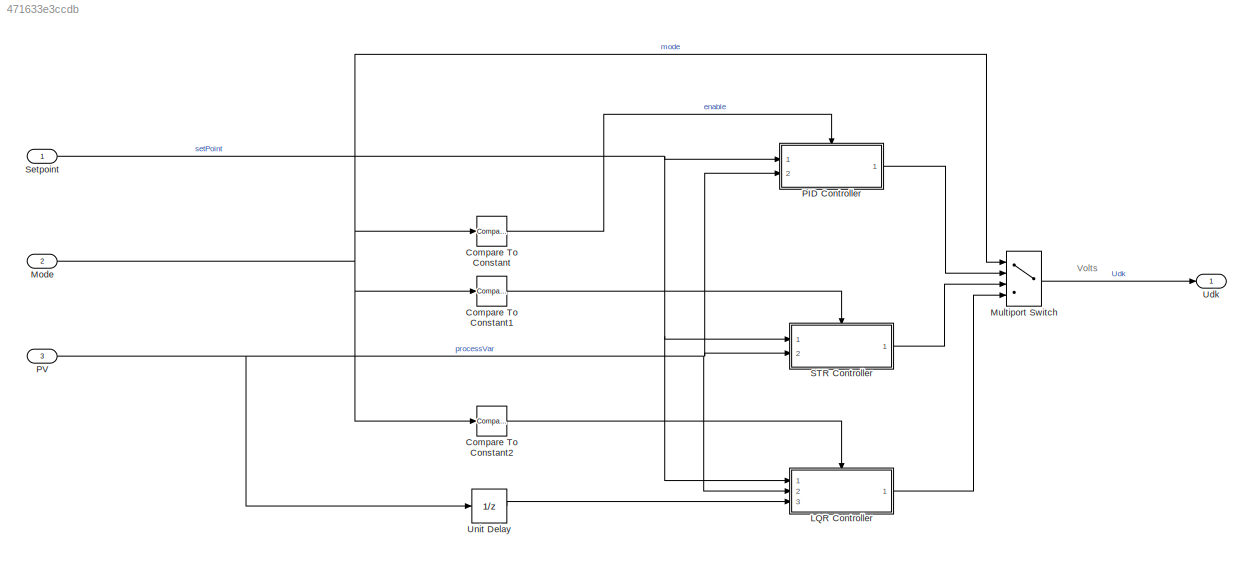
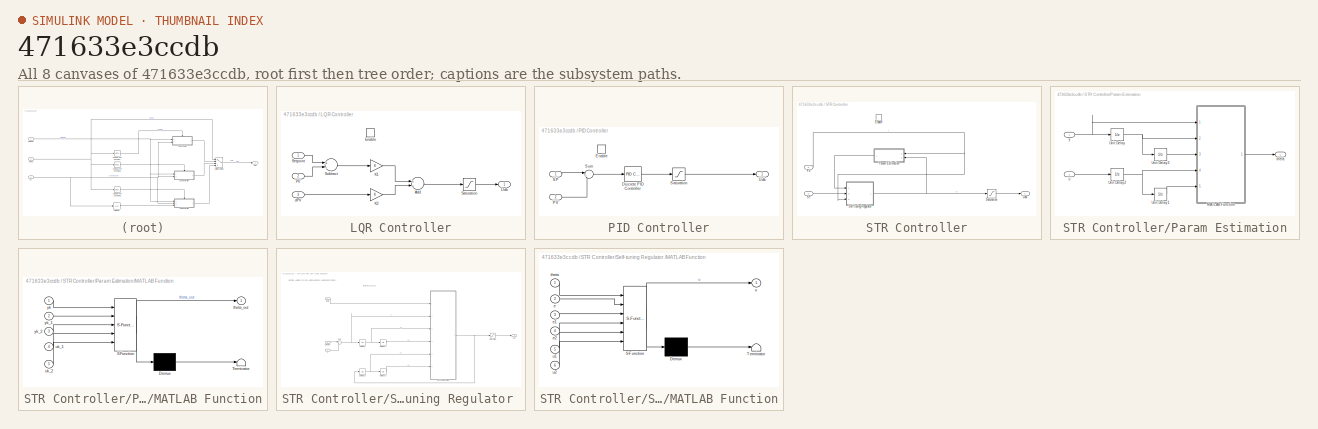
[diagram: thumbnail index - all 8 canvases of the model, root first then tree order]
MODEL slx_471633e3ccdb
KIND model
CONFIG AbsTol = auto
CONFIG EnableMultiTasking = off
CONFIG FixedStep = 0.005
CONFIG MaxStep = auto
CONFIG MinStep = auto
CONFIG RelTol = 1e-3
CONFIG SampleTimeConstraint = Unconstrained
CONFIG Solver = FixedStepDiscrete
CONFIG SolverName = FixedStepDiscrete
CONFIG StartTime = 0.0
CONFIG StopTime = 10.0
BLOCK [Reference] Compare To Constant  REF=simulink/Logic and Bit
Operations/Compare
To Constant
  Ports = [1, 1]
  SourceBlock = simulink/Logic and Bit\nOperations/Compare\nTo Constant
  SourceProductBaseCode = SL
  SourceProductName = Simulink
  SourceType = Compare To Constant
BLOCK [Reference] Compare To Constant1  REF=simulink/Logic and Bit
Operations/Compare
To Constant
  Ports = [1, 1]
  SourceBlock = simulink/Logic and Bit\nOperations/Compare\nTo Constant
  SourceProductBaseCode = SL
  SourceProductName = Simulink
  SourceType = Compare To Constant
BLOCK [Reference] Compare To Constant2  REF=simulink/Logic and Bit
Operations/Compare
To Constant
  Ports = [1, 1]
  SourceBlock = simulink/Logic and Bit\nOperations/Compare\nTo Constant
  SourceProductBaseCode = SL
  SourceProductName = Simulink
  SourceType = Compare To Constant
BLOCK [SubSystem] LQR Controller
  Ports = [3, 1, 1]
  RequestExecContextInheritance = off
BLOCK [Sum] LQR Controller/Add
  InputSameDT = off
  OutDataTypeStr = Inherit: Inherit via internal rule
  Ports = [2, 1]
  SaturateOnIntegerOverflow = off
BLOCK [EnablePort] LQR Controller/Enable
  Ports = []
BLOCK [Gain] LQR Controller/K1
  OutDataTypeStr = Inherit: Inherit via internal rule
  ParamDataTypeStr = Inherit: Inherit via internal rule
  SaturateOnIntegerOverflow = off
BLOCK [Gain] LQR Controller/K2
  OutDataTypeStr = Inherit: Inherit via internal rule
  ParamDataTypeStr = Inherit: Inherit via internal rule
  SaturateOnIntegerOverflow = off
BLOCK [Inport] LQR Controller/PV
  IconDisplay = Port number
  Port = 2
BLOCK [Saturate] LQR Controller/Saturation
  InputPortMap = u0
  LowerLimit = -10
  Ports = [1, 1]
  UpperLimit = 10
BLOCK [Inport] LQR Controller/Setpoint
  IconDisplay = Port number
BLOCK [Sum] LQR Controller/Subtract
  InputSameDT = off
  Inputs = +-
  OutDataTypeStr = Inherit: Inherit via internal rule
  Ports = [2, 1]
  SaturateOnIntegerOverflow = off
BLOCK [Outport] LQR Controller/Udk
  IconDisplay = Port number
BLOCK [Inport] LQR Controller/dPV
  IconDisplay = Port number
  Port = 3
BLOCK [Inport] Mode
  IconDisplay = Port number
  Port = 2
BLOCK [MultiPortSwitch] Multiport Switch
  InputSameDT = off
  Ports = [4, 1]
  SaturateOnIntegerOverflow = off
BLOCK [SubSystem] PID Controller
  Ports = [2, 1, 1]
  RequestExecContextInheritance = off
BLOCK [Reference] PID Controller/Discrete PID Controller  REF=simulink/Continuous/PID Controller
  Ports = [1, 1]
  SourceBlock = simulink/Continuous/PID Controller
  SourceProductBaseCode = SL
  SourceProductName = Simulink
  SourceType = PID 1dof
BLOCK [EnablePort] PID Controller/Enable
  Ports = []
BLOCK [Inport] PID Controller/PV
  IconDisplay = Port number
  Port = 2
BLOCK [Inport] PID Controller/SP
  IconDisplay = Port number
BLOCK [Saturate] PID Controller/Saturation
  InputPortMap = u0
  LowerLimit = -10
  Ports = [1, 1]
  UpperLimit = 10
BLOCK [Sum] PID Controller/Sum
  IconShape = round
  InputSameDT = off
  Inputs = |+-
  OutDataTypeStr = Inherit: Inherit via internal rule
  Ports = [2, 1]
  SaturateOnIntegerOverflow = off
BLOCK [Outport] PID Controller/Udk
  IconDisplay = Port number
BLOCK [Inport] PV
  IconDisplay = Port number
  Port = 3
BLOCK [SubSystem] STR Controller
  Ports = [2, 1, 1]
  RequestExecContextInheritance = off
BLOCK [EnablePort] STR Controller/Enable
  Ports = []
BLOCK [Inport] STR Controller/PV
  IconDisplay = Port number
  Port = 2
BLOCK [SubSystem] STR Controller/Param Estimation
  Ports = [2, 1]
  RequestExecContextInheritance = off
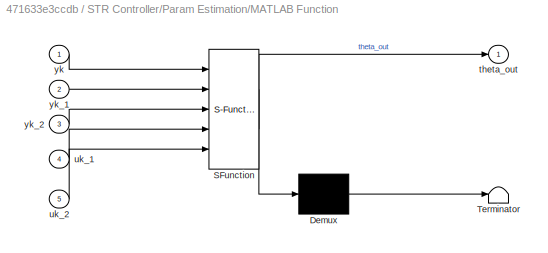
BLOCK [SubSystem] STR Controller/Param Estimation/MATLAB Function
  ErrorFcn = Stateflow.Translate.translate
  PermitHierarchicalResolution = ExplicitOnly
  Ports = [5, 1]
  RequestExecContextInheritance = off
  SFBlockType = MATLAB Function
  TreatAsAtomicUnit = on
BLOCK [Demux] STR Controller/Param Estimation/MATLAB Function/ Demux 
  Outputs = 1
  Ports = [1, 1]
BLOCK [S-Function] STR Controller/Param Estimation/MATLAB Function/ SFunction 
  EnableBusSupport = on
  FunctionName = sf_sfun
  PortCounts = [5 2]
  Ports = [5, 2]
  SFcnIsStateOwnerBlock = off
  SFunctionDeploymentMode = off
  Tag = Stateflow S-Function Controller 2
BLOCK [Terminator] STR Controller/Param Estimation/MATLAB Function/ Terminator 
BLOCK [Outport] STR Controller/Param Estimation/MATLAB Function/theta_out
  IconDisplay = Port number
BLOCK [Inport] STR Controller/Param Estimation/MATLAB Function/uk_1
  IconDisplay = Port number
  Port = 4
BLOCK [Inport] STR Controller/Param Estimation/MATLAB Function/uk_2
  IconDisplay = Port number
  Port = 5
BLOCK [Inport] STR Controller/Param Estimation/MATLAB Function/yk
  IconDisplay = Port number
BLOCK [Inport] STR Controller/Param Estimation/MATLAB Function/yk_1
  IconDisplay = Port number
  Port = 2
BLOCK [Inport] STR Controller/Param Estimation/MATLAB Function/yk_2
  IconDisplay = Port number
  Port = 3
BLOCK [UnitDelay] STR Controller/Param Estimation/Unit Delay
  HasFrameUpgradeWarning = on
  SampleTime = -1
BLOCK [UnitDelay] STR Controller/Param Estimation/Unit Delay1
  HasFrameUpgradeWarning = on
  SampleTime = -1
BLOCK [UnitDelay] STR Controller/Param Estimation/Unit Delay2
  HasFrameUpgradeWarning = on
  SampleTime = -1
BLOCK [UnitDelay] STR Controller/Param Estimation/Unit Delay3
  HasFrameUpgradeWarning = on
  SampleTime = -1
BLOCK [Outport] STR Controller/Param Estimation/theta
  IconDisplay = Port number
  PortDimensions = 4
BLOCK [Inport] STR Controller/Param Estimation/u
  IconDisplay = Port number
  Port = 2
  PortDimensions = 1
BLOCK [Inport] STR Controller/Param Estimation/y 
  IconDisplay = Port number
  PortDimensions = 1
BLOCK [Inport] STR Controller/SP
  IconDisplay = Port number
BLOCK [Saturate] STR Controller/Saturation
  InputPortMap = u0
  LowerLimit = -10
  Ports = [1, 1]
  UpperLimit = 10
BLOCK [SubSystem] STR Controller/Self-tuning Regulator 
  Ports = [3, 1]
  RequestExecContextInheritance = off
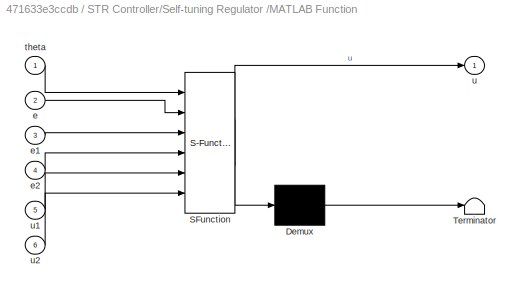
BLOCK [SubSystem] STR Controller/Self-tuning Regulator /MATLAB Function
  ErrorFcn = Stateflow.Translate.translate
  PermitHierarchicalResolution = ExplicitOnly
  Ports = [6, 1]
  RequestExecContextInheritance = off
  SFBlockType = MATLAB Function
  TreatAsAtomicUnit = on
BLOCK [Demux] STR Controller/Self-tuning Regulator /MATLAB Function/ Demux 
  Outputs = 1
  Ports = [1, 1]
BLOCK [S-Function] STR Controller/Self-tuning Regulator /MATLAB Function/ SFunction 
  EnableBusSupport = on
  FunctionName = sf_sfun
  PortCounts = [6 2]
  Ports = [6, 2]
  SFcnIsStateOwnerBlock = off
  SFunctionDeploymentMode = off
  Tag = Stateflow S-Function Controller 1
BLOCK [Terminator] STR Controller/Self-tuning Regulator /MATLAB Function/ Terminator 
BLOCK [Inport] STR Controller/Self-tuning Regulator /MATLAB Function/e
  IconDisplay = Port number
  Port = 2
BLOCK [Inport] STR Controller/Self-tuning Regulator /MATLAB Function/e1
  IconDisplay = Port number
  Port = 3
BLOCK [Inport] STR Controller/Self-tuning Regulator /MATLAB Function/e2
  IconDisplay = Port number
  Port = 4
BLOCK [Inport] STR Controller/Self-tuning Regulator /MATLAB Function/theta
  IconDisplay = Port number
BLOCK [Outport] STR Controller/Self-tuning Regulator /MATLAB Function/u
  IconDisplay = Port number
BLOCK [Inport] STR Controller/Self-tuning Regulator /MATLAB Function/u1
  IconDisplay = Port number
  Port = 5
BLOCK [Inport] STR Controller/Self-tuning Regulator /MATLAB Function/u2
  IconDisplay = Port number
  Port = 6
BLOCK [Saturate] STR Controller/Self-tuning Regulator /Saturation
  InputPortMap = u0
  LowerLimit = -10
  Ports = [1, 1]
  UpperLimit = 10
BLOCK [Inport] STR Controller/Self-tuning Regulator /Setpoint
  IconDisplay = Port number
  Port = 2
  PortDimensions = 1
BLOCK [Sum] STR Controller/Self-tuning Regulator /Sum
  IconShape = round
  InputSameDT = off
  Inputs = |+-
  OutDataTypeStr = Inherit: Inherit via internal rule
  Ports = [2, 1]
  SaturateOnIntegerOverflow = off
BLOCK [UnitDelay] STR Controller/Self-tuning Regulator /Unit Delay
  HasFrameUpgradeWarning = on
  SampleTime = -1
BLOCK [UnitDelay] STR Controller/Self-tuning Regulator /Unit Delay1
  HasFrameUpgradeWarning = on
  SampleTime = -1
BLOCK [UnitDelay] STR Controller/Self-tuning Regulator /Unit Delay2
  HasFrameUpgradeWarning = on
  SampleTime = -1
BLOCK [UnitDelay] STR Controller/Self-tuning Regulator /Unit Delay3
  HasFrameUpgradeWarning = on
  SampleTime = -1
BLOCK [Inport] STR Controller/Self-tuning Regulator /theta
  IconDisplay = Port number
  PortDimensions = 4
BLOCK [Outport] STR Controller/Self-tuning Regulator /udk
  IconDisplay = Port number
  PortDimensions = 1
BLOCK [Inport] STR Controller/Self-tuning Regulator /y
  IconDisplay = Port number
  Port = 3
  PortDimensions = 1
BLOCK [Outport] STR Controller/Udk
  IconDisplay = Port number
BLOCK [Inport] Setpoint
  IconDisplay = Port number
BLOCK [Outport] Udk
  IconDisplay = Port number
BLOCK [UnitDelay] Unit Delay
  HasFrameUpgradeWarning = on
  SampleTime = -1
ANNOTATION (root): Volts
ANNOTATION STR Controller/Self-tuning Regulator : Right Click -> Block Params -> Signal Attributes -> Rewrite Port dimensions
ANNOTATION STR Controller/Self-tuning Regulator : theta = [a1 a2 b1 b2]'
LINE Compare To Constant1:1 -> STR Controller:enable
LINE Compare To Constant2:1 -> LQR Controller:enable
LINE Compare To Constant:1 -> PID Controller:enable
LINE LQR Controller/Add:1 -> LQR Controller/Saturation:1
LINE LQR Controller/K1:1 -> LQR Controller/Add:1
LINE LQR Controller/K2:1 -> LQR Controller/Add:2
LINE LQR Controller/PV:1 -> LQR Controller/Subtract:2
LINE LQR Controller/Saturation:1 -> LQR Controller/Udk:1
LINE LQR Controller/Setpoint:1 -> LQR Controller/Subtract:1
LINE LQR Controller/Subtract:1 -> LQR Controller/K1:1
LINE LQR Controller/dPV:1 -> LQR Controller/K2:1
LINE LQR Controller:1 -> Multiport Switch:4
NET Mode:1 -> Compare To Constant1:1, Compare To Constant2:1, Compare To Constant:1, Multiport Switch:1
LINE Multiport Switch:1 -> Udk:1
LINE PID Controller/Discrete PID Controller:1 -> PID Controller/Saturation:1
LINE PID Controller/PV:1 -> PID Controller/Sum:2
LINE PID Controller/SP:1 -> PID Controller/Sum:1
LINE PID Controller/Saturation:1 -> PID Controller/Udk:1
LINE PID Controller/Sum:1 -> PID Controller/Discrete PID Controller:1
LINE PID Controller:1 -> Multiport Switch:2
NET PV:1 -> LQR Controller:2, PID Controller:2, STR Controller:2, Unit Delay:1
NET STR Controller/PV:1 -> STR Controller/Param Estimation:1, STR Controller/Self-tuning Regulator :3
LINE STR Controller/Param Estimation/MATLAB Function:1 -> STR Controller/Param Estimation/theta:1
LINE STR Controller/Param Estimation/Unit Delay1:1 -> STR Controller/Param Estimation/MATLAB Function:5
NET STR Controller/Param Estimation/Unit Delay2:1 -> STR Controller/Param Estimation/MATLAB Function:4, STR Controller/Param Estimation/Unit Delay1:1
LINE STR Controller/Param Estimation/Unit Delay3:1 -> STR Controller/Param Estimation/MATLAB Function:3
NET STR Controller/Param Estimation/Unit Delay:1 -> STR Controller/Param Estimation/MATLAB Function:2, STR Controller/Param Estimation/Unit Delay3:1
LINE STR Controller/Param Estimation/u:1 -> STR Controller/Param Estimation/Unit Delay2:1
NET STR Controller/Param Estimation/y :1 -> STR Controller/Param Estimation/MATLAB Function:1, STR Controller/Param Estimation/Unit Delay:1
LINE STR Controller/Param Estimation:1 -> STR Controller/Self-tuning Regulator :1
LINE STR Controller/SP:1 -> STR Controller/Self-tuning Regulator :2
LINE STR Controller/Saturation:1 -> STR Controller/Udk:1
NET STR Controller/Self-tuning Regulator /MATLAB Function:1 -> STR Controller/Self-tuning Regulator /Saturation:1, STR Controller/Self-tuning Regulator /Unit Delay2:1
LINE STR Controller/Self-tuning Regulator /Saturation:1 -> STR Controller/Self-tuning Regulator /udk:1
LINE STR Controller/Self-tuning Regulator /Setpoint:1 -> STR Controller/Self-tuning Regulator /Sum:1
NET STR Controller/Self-tuning Regulator /Sum:1 -> STR Controller/Self-tuning Regulator /MATLAB Function:2, STR Controller/Self-tuning Regulator /Unit Delay:1
LINE STR Controller/Self-tuning Regulator /Unit Delay1:1 -> STR Controller/Self-tuning Regulator /MATLAB Function:4
NET STR Controller/Self-tuning Regulator /Unit Delay2:1 -> STR Controller/Self-tuning Regulator /MATLAB Function:5, STR Controller/Self-tuning Regulator /Unit Delay3:1
LINE STR Controller/Self-tuning Regulator /Unit Delay3:1 -> STR Controller/Self-tuning Regulator /MATLAB Function:6
NET STR Controller/Self-tuning Regulator /Unit Delay:1 -> STR Controller/Self-tuning Regulator /MATLAB Function:3, STR Controller/Self-tuning Regulator /Unit Delay1:1
LINE STR Controller/Self-tuning Regulator /theta:1 -> STR Controller/Self-tuning Regulator /MATLAB Function:1
LINE STR Controller/Self-tuning Regulator /y:1 -> STR Controller/Self-tuning Regulator /Sum:2
NET STR Controller/Self-tuning Regulator :1 -> STR Controller/Param Estimation:2, STR Controller/Saturation:1
LINE STR Controller:1 -> Multiport Switch:3
NET Setpoint:1 -> LQR Controller:1, PID Controller:1, STR Controller:1
LINE Unit Delay:1 -> LQR Controller:3
note: NET lines group one-source signal fan-out (src -> all destinations, sorted); 1:1 wires keep LINE
CHART STR Controller/Self-tuning Regulator
 /MATLAB Function states=1 transitions=1
  STATE_LABEL 'eML_blk_kernel()'
  STATE_LABEL 'SCRIPT:\nfunction u = STR(theta,e,e1,e2,u1,u2)\nT0 = 0.005;\nxi = 0.99\nwn = 20;\n% Gan lai thong so de thuan tien viec tinh toan\na1 = theta(1);\na2 = theta(2);\nb1 = theta(3);\nb2 = theta(4);\n% Tinh thong so bo dieu khien\nif(xi<1)\nd1 = -2*exp(-xi*wn*T0)*cos(wn*T0*sqrt(1-xi^2)); % xi<1\nelse\nd1 = -2*exp(-xi*wn*T0)*cosh(wn*T0*sqrt(xi^2-1)); % xi>1\nend\nd2 = exp(-2*xi*wn*T0);\nr1 = (b1+b2)*(a1*b1*b2-a2*b1*b1-b...<+216ch>'
CHART STR Controller/Param Estimation/MATLAB Function states=1 transitions=1
  STATE_LABEL 'eML_blk_kernel()'
  STATE_LABEL "SCRIPT:\nfunction theta_out = fcn(yk,yk_1,yk_2,uk_1,uk_2)\npersistent theta P\n\nif (isempty(theta))\n    theta = rand(4,1);\n    P = 10*eye(4);\nend\n\nlambda = 0.995;\n\nphi = [-yk_1;-yk_2;uk_1;uk_2];\n\nLk = P*phi/(lambda + phi'*P*phi);\nP = 1/lambda*(P-Lk*phi'*P);\nek = yk - phi'*theta;\ntheta = theta + Lk*ek;\n\ntheta_out = theta;\nend"
